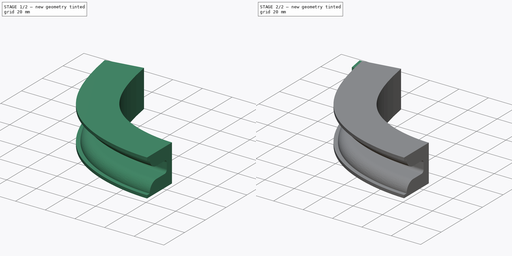
[diagram: build sequence overview — one tinted view per stage of 2, left to right]
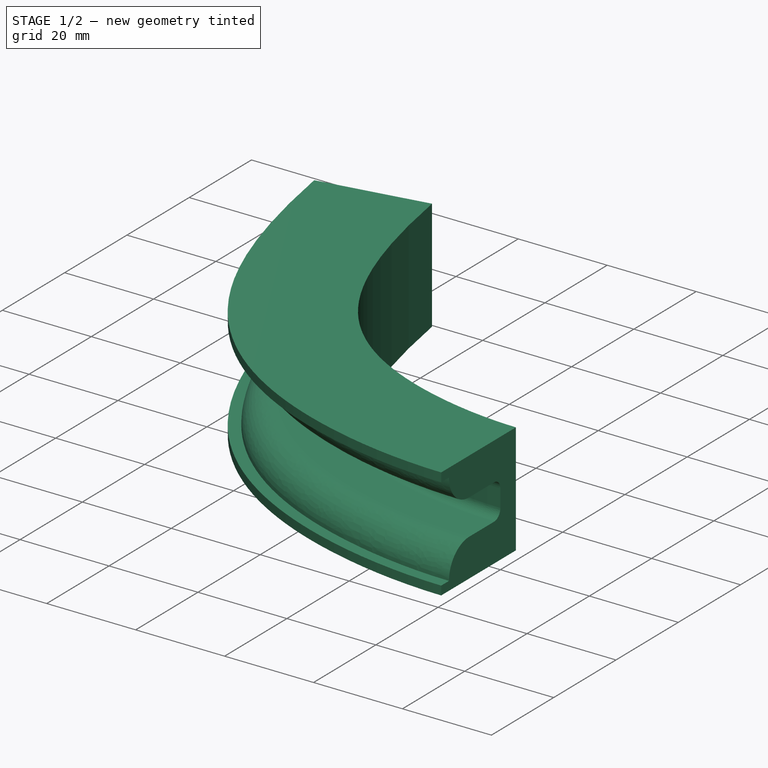
[diagram: stage 1 of 2 — iso view after this stage's code; geometry added in this stage tinted green]
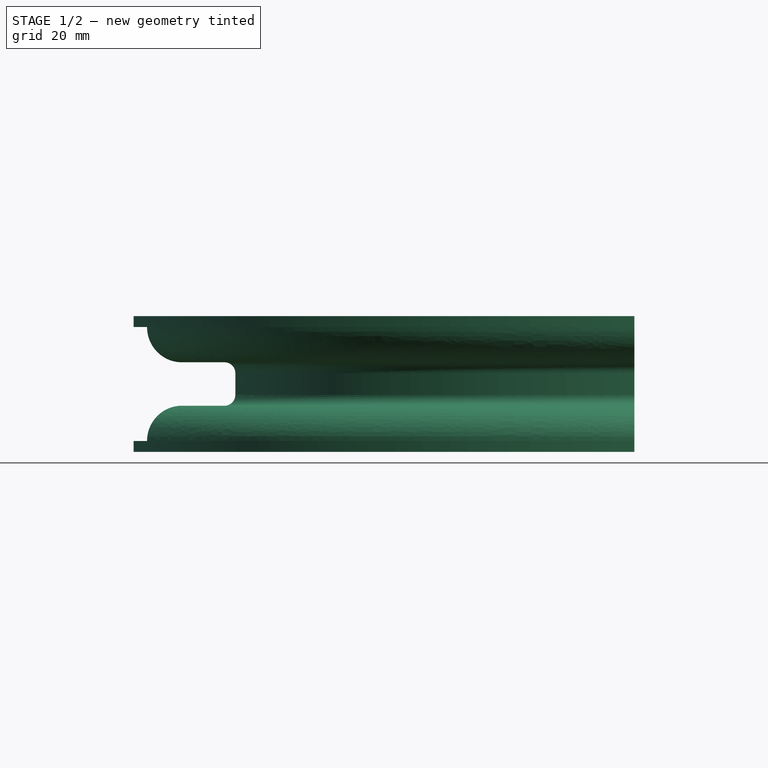
[diagram: stage 1 of 2 — front view after this stage's code; geometry added in this stage tinted green]
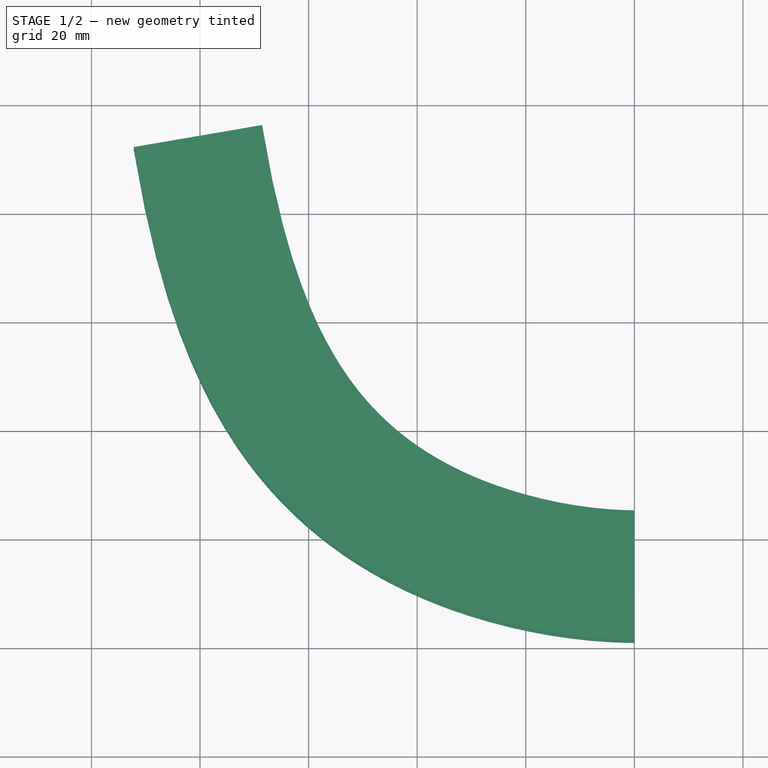
[diagram: stage 1 of 2 — top view after this stage's code; geometry added in this stage tinted green]
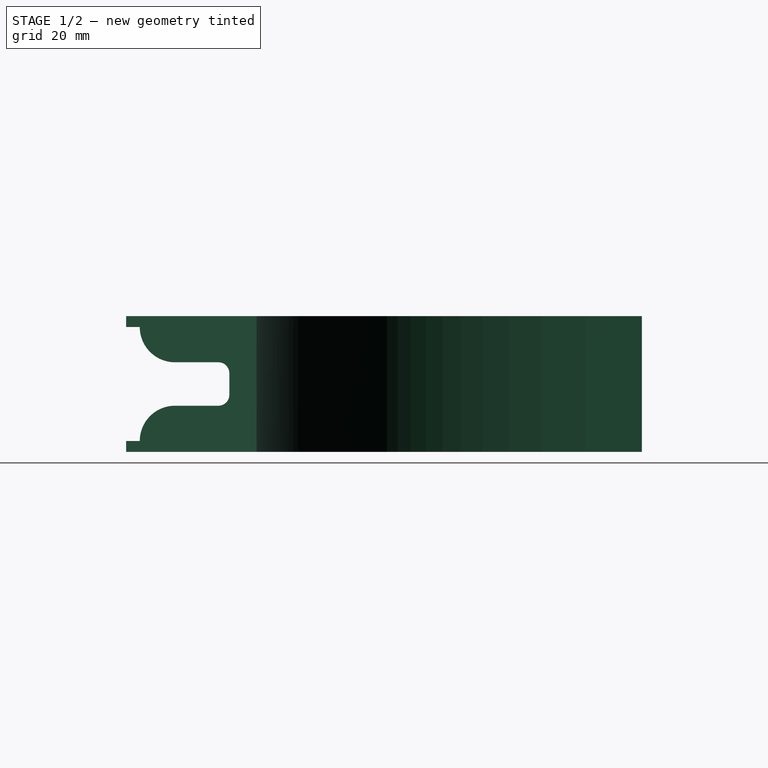
[diagram: stage 1 of 2 — right view after this stage's code; geometry added in this stage tinted green]
FCSTD DOCUMENT  (FreeCAD 0.18.4R)
Label: M-19_v100k_foam_jig
License: CreativeCommons Attribution
LicenseURL: http://creativecommons.org/licenses/by/4.0/
objects: Sketcher::SketchObject×3, PartDesign::AdditivePipe×1, PartDesign::Pad×1, PartDesign::Body×1
note: 8 computed .brp shape members not serialized (recipe doc carries the construction recipe); baked Part::Feature solids carry a one-line shape summary decoded from their .brp

FEATURE [Sketcher::SketchObject] Sketch135
  sketch-geometry (7):
    g0: Circle [constr] CenterX=-73.5 CenterY=75.1373 CenterZ=0 NormalX=0 NormalY=0 NormalZ=1 AngleXU=0 Radius=10
    g1: Circle [constr] CenterX=-49.529 CenterY=10.6373 CenterZ=0 NormalX=0 NormalY=0 NormalZ=1 AngleXU=0 Radius=10
    g2: BSplineCurve PolesCount=5 KnotsCount=2 Degree=4 IsPeriodic=0
    g3: GeomPoint [constr] X=-73.5 Y=75.1373 Z=0
    g4: GeomPoint [constr] X=0 Y=0 Z=0
    g5: Circle [constr] CenterX=-22.686 CenterY=0.137282 CenterZ=0 NormalX=0 NormalY=0 NormalZ=1 AngleXU=0 Radius=10
    g6: Circle [constr] CenterX=0 CenterY=0 CenterZ=0 NormalX=0 NormalY=0 NormalZ=1 AngleXU=0 Radius=10
  constraints (15):
    c: Radius(g0) = 10
    c: Equal(g0,g1)
    c: InternalAlignment(g0,g2)
    c: InternalAlignment(g1,g2)
    c: InternalAlignment(g3,g2)
    c: InternalAlignment(g4,g2)
    c: InternalAlignment(g5,g2)
    c: Equal(g5,g0)
    c: InternalAlignment(g6,g2)
    c: Equal(g6,g0)
    c: DistanceX(g5,g2) = 22.686
    c: DistanceX(g1,g2) = 49.529
    c: DistanceX(g2,g2) = 73.5
    c: PointOnObject(g2,g-2)
    c: Block(g2)
FEATURE [Sketcher::SketchObject] Sketch
  MapMode = 5
  Placement = pos=(0,0,0) rot=(0.57735,0.57735,0.57735;2.0944rad)
  Support = -> [YZ_Plane]
  sketch-geometry (14):
    g0: LineSegment StartX=-19 StartY=10.5 StartZ=0 EndX=-16.5 EndY=10.5 EndZ=0
    g1: ArcOfCircle CenterX=-10 CenterY=10.5 CenterZ=0 NormalX=0 NormalY=0 NormalZ=1 AngleXU=0 Radius=6.5 StartAngle=3.14159 EndAngle=4.71239
    g2: LineSegment StartX=-10 StartY=4 StartZ=0 EndX=-2 EndY=4 EndZ=0
    g3: LineSegment StartX=0 StartY=2 StartZ=0 EndX=0 EndY=-2 EndZ=0
    g4: LineSegment StartX=-2 StartY=-4 StartZ=0 EndX=-10 EndY=-4 EndZ=0
    g5: ArcOfCircle CenterX=-10 CenterY=-10.5 CenterZ=0 NormalX=0 NormalY=0 NormalZ=1 AngleXU=0 Radius=6.5 StartAngle=1.5708 EndAngle=3.14159
    g6: LineSegment StartX=-16.5 StartY=-10.5 StartZ=0 EndX=-19 EndY=-10.5 EndZ=0
    g7: LineSegment StartX=-19 StartY=-12.5 StartZ=0 EndX=5 EndY=-12.5 EndZ=0
    g8: LineSegment StartX=5 StartY=-12.5 StartZ=0 EndX=5 EndY=12.5 EndZ=0
    g9: LineSegment StartX=5 StartY=12.5 StartZ=0 EndX=-19 EndY=12.5 EndZ=0
    g10: ArcOfCircle CenterX=-2 CenterY=2 CenterZ=0 NormalX=0 NormalY=0 NormalZ=1 AngleXU=0 Radius=2 StartAngle=0 EndAngle=1.5708
    g11: ArcOfCircle CenterX=-2 CenterY=-2 CenterZ=0 NormalX=0 NormalY=0 NormalZ=1 AngleXU=0 Radius=2 StartAngle=4.71239 EndAngle=6.28319
    g12: LineSegment StartX=-19 StartY=10.5 StartZ=0 EndX=-19 EndY=12.5 EndZ=0
    g13: LineSegment StartX=-19 StartY=-10.5 StartZ=0 EndX=-19 EndY=-12.5 EndZ=0
  constraints (41):
    c: Horizontal(g0)
    c: Horizontal(g2)
    c: Tangent(g4,g5) = -1.5708
    c: Coincident(g5,g6)
    c: Horizontal(g7)
    c: Coincident(g7,g8)
    c: Vertical(g8)
    c: Coincident(g8,g9)
    c: Horizontal(g9)
    c: Horizontal(g4)
    c: Horizontal(g6)
    c: Equal(g0,g6)
    c: Equal(g1,g5)
    c: Equal(g2,g4)
    c: Equal(g7,g9)
    c: Tangent(g1,g2) = -1.5708
    c: Coincident(g1,g0)
    c: Angle(g1) = 1.5708
    c: DistanceX(g0,g0) = 2.5
    c: DistanceY(g5,g0) = 21
    c: DistanceX(g9,g9) = 24
    c: Tangent(g2,g10) = 1.5708
    c: Tangent(g3,g10) = 1.5708
    c: Tangent(g4,g11) = 1.5708
    c: Tangent(g3,g11) = 1.5708
    c: Equal(g10,g11)
    c: DistanceY(g4,g2) = 8
    c: DistanceX(g1,g3) = 10
    c: Symmetric(g3,g3,g-1)
    c: Radius(g10) = 2
    c: Tangent(g3,g-2) = 1.5708
    c: Radius(g1) = 6.5
    c: PointOnObject(g12,g9)
    c: Vertical(g12)
    c: Coincident(g13,g6)
    c: Vertical(g13)
    c: Coincident(g7,g13)
    c: Equal(g12,g13)
    c: Equal(g9,g7)
    c: Coincident(g12,g0)
    c: DistanceY(g8,g8) = 25
FEATURE [PartDesign::AdditivePipe] AdditivePipe
  AuxilleryCurvelinear = true
  AuxillerySpineTangent = false
  Binormal = (0,0,0)
  Mode = 0
  Placement = pos=(0,0,0) rot=(0.57735,0.57735,0.57735;2.0944rad)
  Profile = -> Sketch
  Refine = true
  Spine = -> Sketch135 [Edge1]
  SpineTangent = false
  Transformation = 0
  Transition = 0
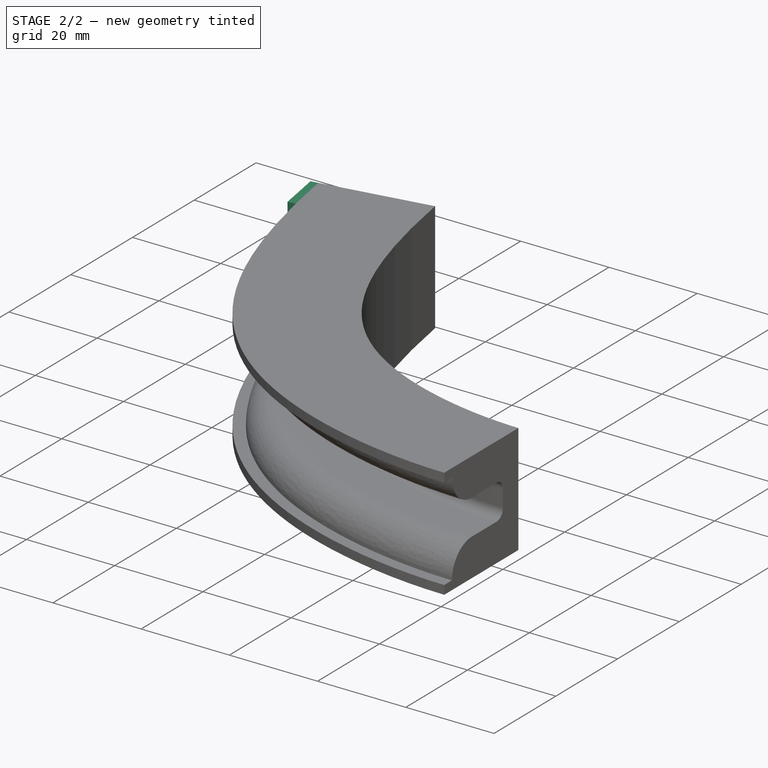
[diagram: stage 2 of 2 — iso view after this stage's code; geometry added in this stage tinted green]
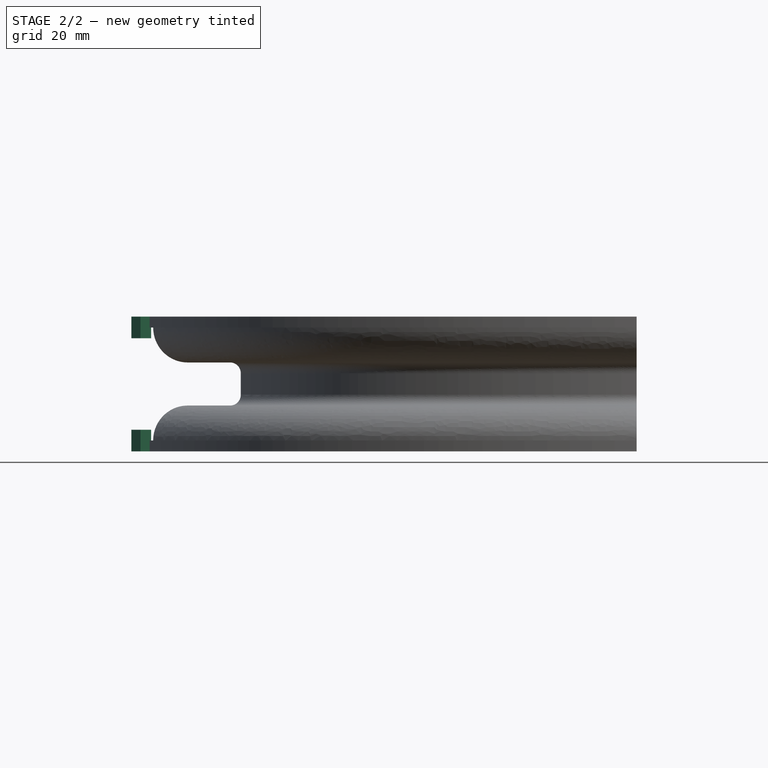
[diagram: stage 2 of 2 — front view after this stage's code; geometry added in this stage tinted green]
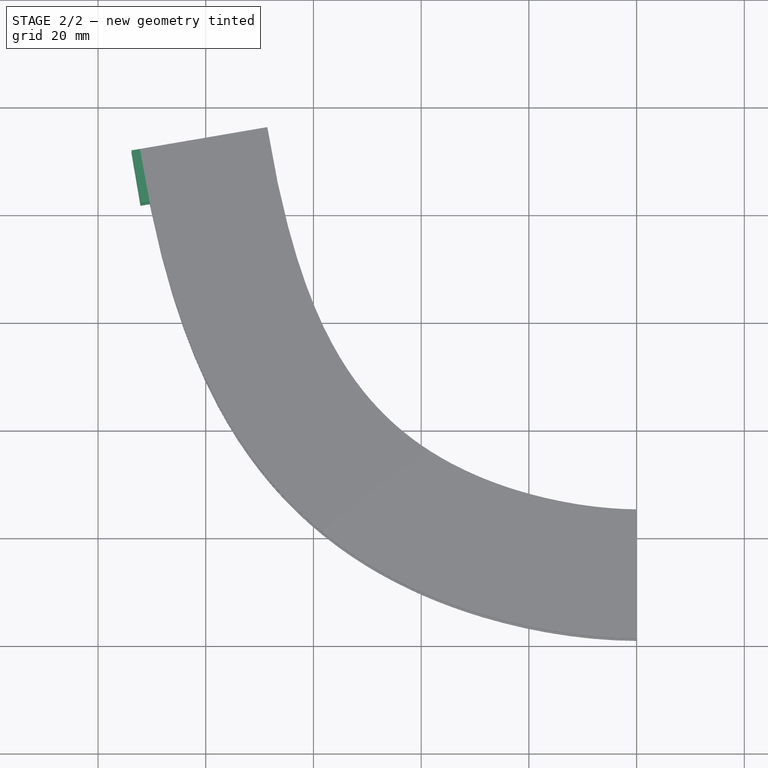
[diagram: stage 2 of 2 — top view after this stage's code; geometry added in this stage tinted green]
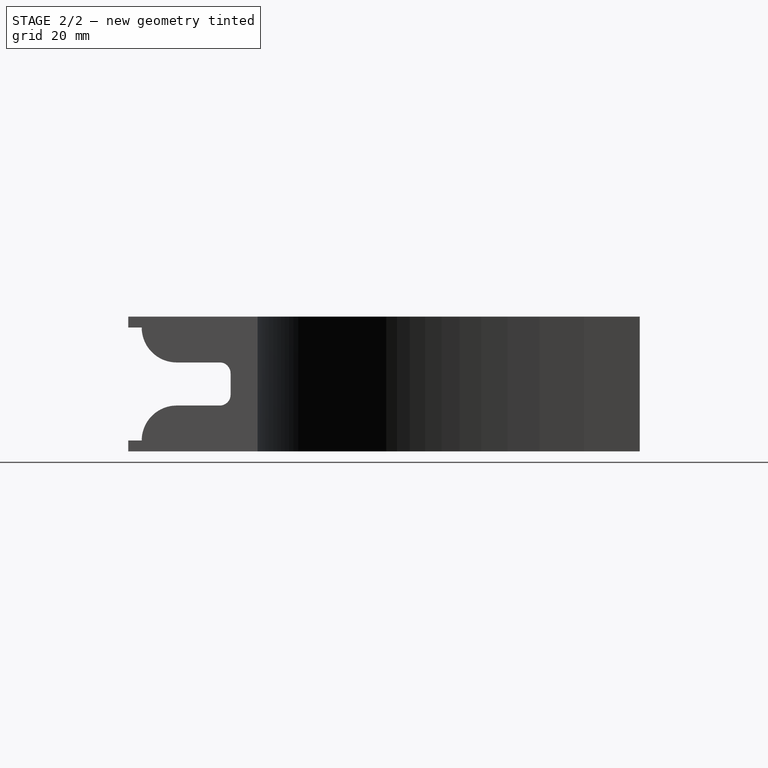
[diagram: stage 2 of 2 — right view after this stage's code; geometry added in this stage tinted green]
FEATURE [Sketcher::SketchObject] Sketch136
  ExternalGeometry = -> [AdditivePipe]
  MapMode = 5
  Placement = pos=(-14.5997,85.2271,-5.44e-14) rot=(-0.541825,-0.642534,-0.541825;1.99937rad)
  Support = -> [AdditivePipe]
  sketch-geometry (8):
    g0: LineSegment StartX=12.5 StartY=-78.3583 StartZ=0 EndX=8.5 EndY=-78.3583 EndZ=0
    g1: LineSegment StartX=8.5 StartY=-78.3583 StartZ=0 EndX=8.5 EndY=-80.3583 EndZ=0
    g2: LineSegment StartX=8.5 StartY=-80.3583 StartZ=0 EndX=12.5 EndY=-80.3583 EndZ=0
    g3: LineSegment StartX=12.5 StartY=-80.3583 StartZ=0 EndX=12.5 EndY=-78.3583 EndZ=0
    g4: LineSegment StartX=-8.5 StartY=-78.3583 StartZ=0 EndX=-12.5 EndY=-78.3583 EndZ=0
    g5: LineSegment StartX=-12.5 StartY=-78.3583 StartZ=0 EndX=-12.5 EndY=-80.3583 EndZ=0
    g6: LineSegment StartX=-12.5 StartY=-80.3583 StartZ=0 EndX=-8.5 EndY=-80.3583 EndZ=0
    g7: LineSegment StartX=-8.5 StartY=-80.3583 StartZ=0 EndX=-8.5 EndY=-78.3583 EndZ=0
  constraints (23):
    c: Coincident(g5,g6)
    c: Coincident(g4,g5)
    c: Coincident(g6,g7)
    c: Coincident(g4,g7)
    c: Coincident(g1,g2)
    c: Coincident(g0,g1)
    c: Coincident(g2,g3)
    c: Coincident(g0,g3)
    c: Equal(g6,g2)
    c: Equal(g7,g1)
    c: Horizontal(g6)
    c: Horizontal(g4)
    c: Horizontal(g0)
    c: Horizontal(g2)
    c: Vertical(g5)
    c: Vertical(g7)
    c: Vertical(g1)
    c: Vertical(g3)
    c: Symmetric(g6,g1,g-2)
    c: DistanceY(g5,g5) = 2
    c: DistanceX(g6,g6) = 4
    c: DistanceY(g-3,g4) = 0.4
    c: PointOnObject(g4,g-4)
FEATURE [PartDesign::Pad] Pad
  BaseFeature = -> AdditivePipe
  Length = 10
  Length2 = 100
  Placement = pos=(0,0,0) rot=(0.57735,0.57735,0.57735;2.0944rad)
  Profile = -> Sketch136
  Refine = true
  Reversed = true
  Type = 0
FEATURE [PartDesign::Body] Body
  Group = -> [Sketch135,Sketch,Sketch136,AdditivePipe,Pad]
  Origin = -> Origin
  Tip = -> Pad
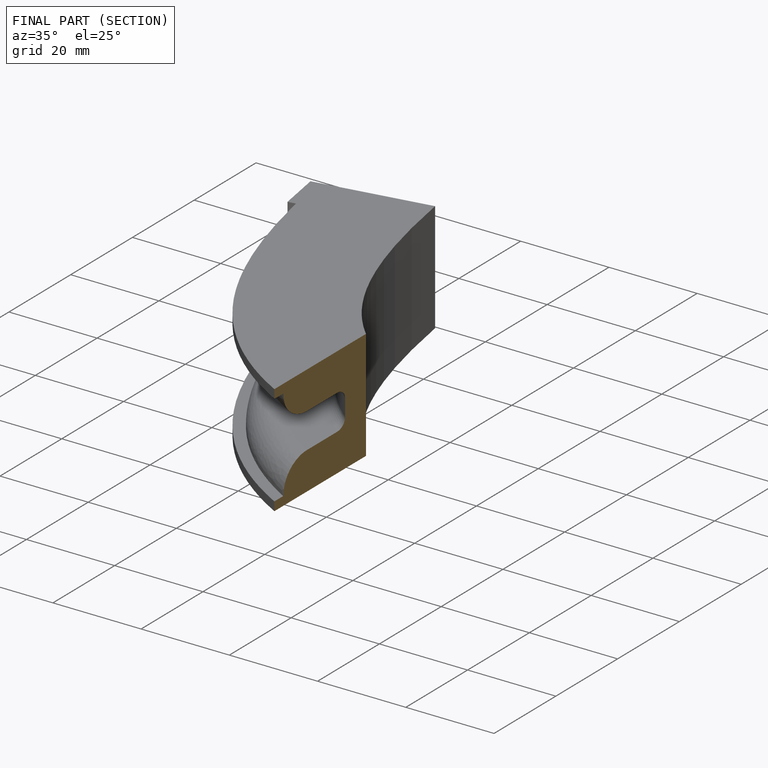
[diagram: finished part — half-section view (interior)]
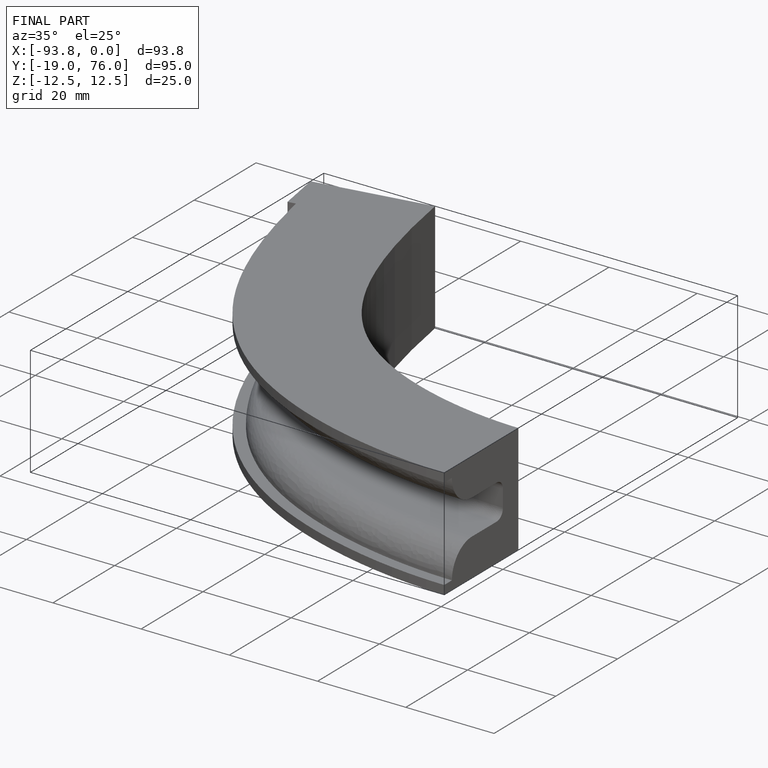
[diagram: finished part — iso view with bounding-box wireframe]
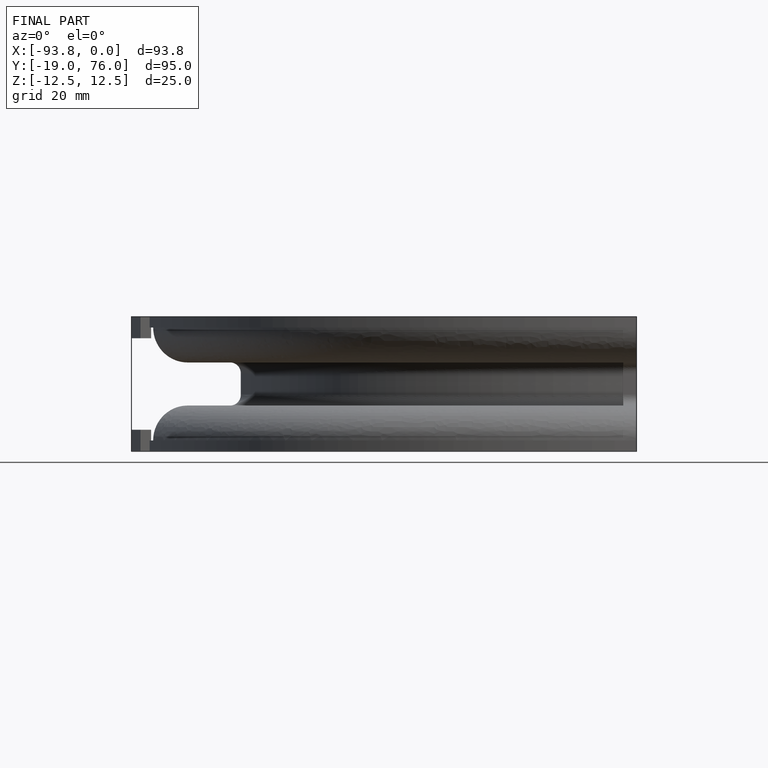
[diagram: finished part — front view with bounding-box wireframe]
